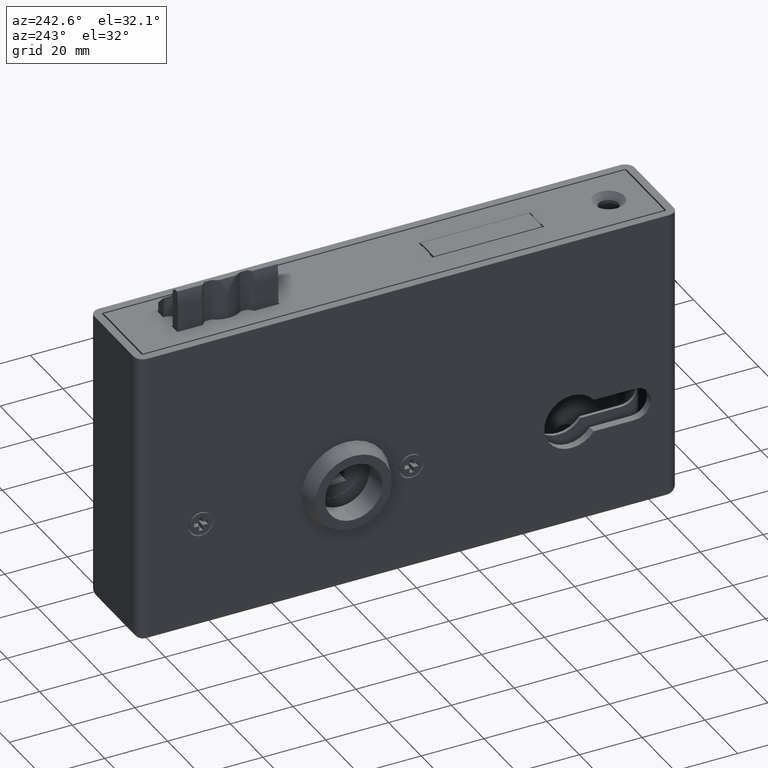
[diagram: clean part render]
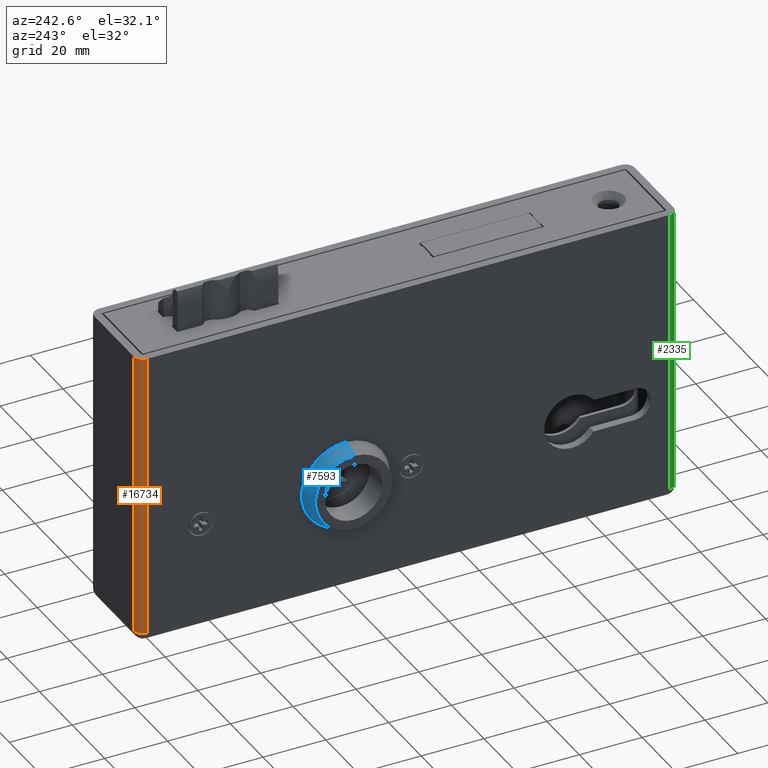
[diagram: same view with three faces highlighted in distinct colors, each labeled with its STEP entity id]
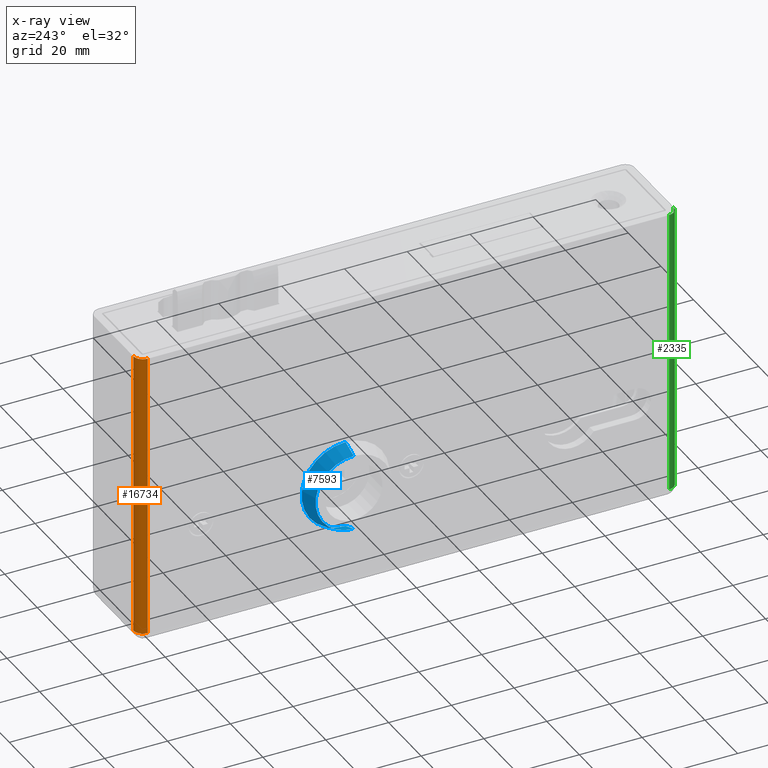
[diagram: x-ray of the same camera — body ghosted, the three highlighted faces saturated]
A machine part, auxiliary view with three faces highlighted in distinct colors.
The next image is the same camera in x-ray (body ghosted, the three faces saturated) — at least one of them is partly hidden behind the body in this view.
Their STEP definitions:

[orange] entity #16734 — the highlighted cylindrical surface (edge-blend (fillet) strip) has radius 3 mm, axis along (0, 0, 1).
#22 = LINE ( 'NONE', #6346, #17492 ) ;
#471 = DIRECTION ( 'NONE',  ( -1.000000000000000000, 0.000000000000000000, 0.000000000000000000 ) ) ;
#531 = DIRECTION ( 'NONE',  ( 0.000000000000000000, -0.000000000000000000, -1.000000000000000000 ) ) ;
#3063 = CARTESIAN_POINT ( 'NONE',  ( -12.00000000000000000, 82.99999999999997158, 47.25000000000000000 ) ) ;
#6015 = VERTEX_POINT ( 'NONE', #15608 ) ;
#6027 = VECTOR ( 'NONE', #20986, 1000.000000000000000 ) ;
#6071 = EDGE_CURVE ( 'NONE', #12103, #24096, #21462, .T. ) ;
#6282 = CARTESIAN_POINT ( 'NONE',  ( -12.00000000000000000, 82.99999999999997158, -44.25000000000000000 ) ) ;
#6346 = CARTESIAN_POINT ( 'NONE',  ( -15.00000000000000000, 82.99999999999997158, 0.000000000000000000 ) ) ;
#6524 = EDGE_CURVE ( 'NONE', #13938, #12103, #22, .T. ) ;
#7935 = CIRCLE ( 'NONE', #22305, 3.000000000000002665 ) ;
#7979 = DIRECTION ( 'NONE',  ( 0.000000000000000000, 0.000000000000000000, -1.000000000000000000 ) ) ;
#8736 = FACE_OUTER_BOUND ( 'NONE', #23734, .T. ) ;
#9268 = CARTESIAN_POINT ( 'NONE',  ( -12.00000000000000000, 85.99999999999998579, 47.25000000000000000 ) ) ;
#9674 = ORIENTED_EDGE ( 'NONE', *, *, #6071, .F. ) ;
#10037 = CARTESIAN_POINT ( 'NONE',  ( -12.00000000000000000, 85.99999999999998579, -44.25000000000000000 ) ) ;
#10355 = AXIS2_PLACEMENT_3D ( 'NONE', #6282, #7979, #471 ) ;
#11110 = DIRECTION ( 'NONE',  ( 0.000000000000000000, 1.000000000000000000, 0.000000000000000000 ) ) ;
#12103 = VERTEX_POINT ( 'NONE', #24935 ) ;
#12216 = ORIENTED_EDGE ( 'NONE', *, *, #6524, .F. ) ;
#13815 = EDGE_CURVE ( 'NONE', #6015, #13938, #7935, .T. ) ;
#13938 = VERTEX_POINT ( 'NONE', #16855 ) ;
#14994 = DIRECTION ( 'NONE',  ( -0.000000000000000000, -1.210272192541958616E-16, 1.000000000000000000 ) ) ;
#15502 = CARTESIAN_POINT ( 'NONE',  ( -12.00000000000000000, 82.99999999999997158, 47.25000000000000000 ) ) ;
#15608 = CARTESIAN_POINT ( 'NONE',  ( -12.00000000000000000, 85.99999999999998579, 47.25000000000000000 ) ) ;
#16547 = DIRECTION ( 'NONE',  ( -0.000000000000000000, 0.000000000000000000, 1.000000000000000000 ) ) ;
#16734 = ADVANCED_FACE ( 'NONE', ( #8736 ), #24786, .T. ) ;
#16855 = CARTESIAN_POINT ( 'NONE',  ( -15.00000000000000000, 82.99999999999997158, 47.25000000000000000 ) ) ;
#17492 = VECTOR ( 'NONE', #531, 1000.000000000000000 ) ;
#17722 = ORIENTED_EDGE ( 'NONE', *, *, #23023, .F. ) ;
#18918 = AXIS2_PLACEMENT_3D ( 'NONE', #3063, #16547, #22391 ) ;
#20986 = DIRECTION ( 'NONE',  ( -0.000000000000000000, 0.000000000000000000, 1.000000000000000000 ) ) ;
#21152 = ORIENTED_EDGE ( 'NONE', *, *, #13815, .F. ) ;
#21462 = CIRCLE ( 'NONE', #10355, 2.999999999999999112 ) ;
#22305 = AXIS2_PLACEMENT_3D ( 'NONE', #15502, #14994, #11110 ) ;
#22391 = DIRECTION ( 'NONE',  ( 1.000000000000000000, 0.000000000000000000, 0.000000000000000000 ) ) ;
#23023 = EDGE_CURVE ( 'NONE', #24096, #6015, #23875, .T. ) ;
#23734 = EDGE_LOOP ( 'NONE', ( #9674, #12216, #21152, #17722 ) ) ;
#23875 = LINE ( 'NONE', #9268, #6027 ) ;
#24096 = VERTEX_POINT ( 'NONE', #10037 ) ;
#24786 = CYLINDRICAL_SURFACE ( 'NONE', #18918, 2.999999999999999112 ) ;
#24935 = CARTESIAN_POINT ( 'NONE',  ( -15.00000000000000000, 82.99999999999997158, -44.25000000000000000 ) ) ;

[blue] entity #7593 — the highlighted conical surface has half-angle 20.304 deg.
#306 = DIRECTION ( 'NONE',  ( 8.881784197001252323E-15, 0.000000000000000000, -1.000000000000000000 ) ) ;
#436 = LINE ( 'NONE', #12764, #23971 ) ;
#631 = CARTESIAN_POINT ( 'NONE',  ( 1.079136779935652284E-13, 8.000000000000000000, -12.15000000000000036 ) ) ;
#774 = CARTESIAN_POINT ( 'NONE',  ( -1.226304732392112657E-13, 3.000000000000002665, 14.00000000000000000 ) ) ;
#1657 = DIRECTION ( 'NONE',  ( 0.000000000000000000, -1.000000000000000000, 0.000000000000000000 ) ) ;
#3218 = DIRECTION ( 'NONE',  ( 0.000000000000000000, -1.000000000000000000, 0.000000000000000000 ) ) ;
#3685 = VECTOR ( 'NONE', #9789, 1000.000000000000000 ) ;
#4501 = EDGE_CURVE ( 'NONE', #4995, #5199, #22118, .T. ) ;
#4705 = EDGE_CURVE ( 'NONE', #16678, #5199, #9730, .T. ) ;
#4995 = VERTEX_POINT ( 'NONE', #774 ) ;
#5199 = VERTEX_POINT ( 'NONE', #7260 ) ;
#5995 = ORIENTED_EDGE ( 'NONE', *, *, #4705, .T. ) ;
#6659 = CONICAL_SURFACE ( 'NONE', #21999, 14.00000000000000000, 0.3543799191234377477 ) ;
#7042 = CARTESIAN_POINT ( 'NONE',  ( 0.000000000000000000, 8.000000000000000000, 0.000000000000000000 ) ) ;
#7260 = CARTESIAN_POINT ( 'NONE',  ( 1.243449787580175325E-13, 3.000000000000002665, -14.00000000000000000 ) ) ;
#7593 = ADVANCED_FACE ( 'NONE', ( #21440 ), #6659, .T. ) ;
#7876 = CARTESIAN_POINT ( 'NONE',  ( 1.243449787580175325E-13, 3.000000000000002665, -14.00000000000000000 ) ) ;
#8522 = ORIENTED_EDGE ( 'NONE', *, *, #4501, .F. ) ;
#8930 = EDGE_CURVE ( 'NONE', #15783, #16678, #24731, .T. ) ;
#9471 = CARTESIAN_POINT ( 'NONE',  ( 0.000000000000000000, 3.000000000000002665, 0.000000000000000000 ) ) ;
#9730 = LINE ( 'NONE', #7876, #3685 ) ;
#9789 = DIRECTION ( 'NONE',  ( 3.082058002519743016E-15, -0.9378618426812278530, -0.3470088817920542468 ) ) ;
#11055 = EDGE_LOOP ( 'NONE', ( #22038, #15977, #5995, #8522 ) ) ;
#12309 = AXIS2_PLACEMENT_3D ( 'NONE', #9471, #1657, #13429 ) ;
#12764 = CARTESIAN_POINT ( 'NONE',  ( -1.226304732392112657E-13, 3.000000000000002665, 14.00000000000000000 ) ) ;
#13226 = EDGE_CURVE ( 'NONE', #15783, #4995, #436, .T. ) ;
#13429 = DIRECTION ( 'NONE',  ( 8.881784197001252323E-15, 0.000000000000000000, -1.000000000000000000 ) ) ;
#13933 = AXIS2_PLACEMENT_3D ( 'NONE', #7042, #3218, #20604 ) ;
#15154 = CARTESIAN_POINT ( 'NONE',  ( 0.000000000000000000, 3.000000000000002665, 0.000000000000000000 ) ) ;
#15783 = VERTEX_POINT ( 'NONE', #21066 ) ;
#15977 = ORIENTED_EDGE ( 'NONE', *, *, #8930, .T. ) ;
#16308 = DIRECTION ( 'NONE',  ( -3.039561670883508957E-15, -0.9378618426812278530, 0.3470088817920542468 ) ) ;
#16678 = VERTEX_POINT ( 'NONE', #631 ) ;
#17574 = DIRECTION ( 'NONE',  ( 0.000000000000000000, -1.000000000000000000, 0.000000000000000000 ) ) ;
#20604 = DIRECTION ( 'NONE',  ( 8.881784197001252323E-15, 0.000000000000000000, -1.000000000000000000 ) ) ;
#21066 = CARTESIAN_POINT ( 'NONE',  ( -1.145281026859062203E-13, 8.000000000000000000, 12.15000000000000036 ) ) ;
#21440 = FACE_OUTER_BOUND ( 'NONE', #11055, .T. ) ;
#21999 = AXIS2_PLACEMENT_3D ( 'NONE', #15154, #17574, #306 ) ;
#22038 = ORIENTED_EDGE ( 'NONE', *, *, #13226, .F. ) ;
#22118 = CIRCLE ( 'NONE', #12309, 14.00000000000000000 ) ;
#23971 = VECTOR ( 'NONE', #16308, 1000.000000000000000 ) ;
#24731 = CIRCLE ( 'NONE', #13933, 12.15000000000000036 ) ;

[green] entity #2335 — the highlighted cylindrical surface (edge-blend (fillet) strip) has radius 3 mm, axis along (0, 0, -1).
#245 = EDGE_CURVE ( 'NONE', #12862, #14011, #19856, .T. ) ;
#708 = DIRECTION ( 'NONE',  ( -0.000000000000000000, -0.000000000000000000, -1.000000000000000000 ) ) ;
#1284 = CARTESIAN_POINT ( 'NONE',  ( -12.00000000000000000, -83.00000000000000000, 47.24999999999997868 ) ) ;
#1466 = ORIENTED_EDGE ( 'NONE', *, *, #3642, .F. ) ;
#2335 = ADVANCED_FACE ( 'NONE', ( #6190 ), #9219, .T. ) ;
#3642 = EDGE_CURVE ( 'NONE', #16419, #12862, #10975, .T. ) ;
#3936 = AXIS2_PLACEMENT_3D ( 'NONE', #13307, #5261, #20648 ) ;
#4001 = CARTESIAN_POINT ( 'NONE',  ( -12.00000000000000000, -86.00000000000000000, 47.24999999999997868 ) ) ;
#5261 = DIRECTION ( 'NONE',  ( -0.000000000000000000, -1.210272192541958616E-16, 1.000000000000000000 ) ) ;
#5855 = CIRCLE ( 'NONE', #14607, 2.999999999999999112 ) ;
#6190 = FACE_OUTER_BOUND ( 'NONE', #11639, .T. ) ;
#6318 = CARTESIAN_POINT ( 'NONE',  ( -12.00000000000000000, -86.00000000000000000, -44.25000000000002842 ) ) ;
#7850 = CARTESIAN_POINT ( 'NONE',  ( -12.00000000000000000, -86.00000000000000000, 47.24999999999997868 ) ) ;
#8435 = CARTESIAN_POINT ( 'NONE',  ( -15.00000000000000000, -83.00000000000000000, 47.24999999999997868 ) ) ;
#8998 = DIRECTION ( 'NONE',  ( -1.000000000000000000, 0.000000000000000000, 0.000000000000000000 ) ) ;
#9206 = EDGE_CURVE ( 'NONE', #14011, #14992, #12009, .T. ) ;
#9219 = CYLINDRICAL_SURFACE ( 'NONE', #24373, 2.999999999999999112 ) ;
#9314 = ORIENTED_EDGE ( 'NONE', *, *, #245, .F. ) ;
#9483 = DIRECTION ( 'NONE',  ( -0.000000000000000000, -0.000000000000000000, 1.000000000000000000 ) ) ;
#10975 = LINE ( 'NONE', #19160, #18807 ) ;
#11639 = EDGE_LOOP ( 'NONE', ( #9314, #1466, #18547, #16579 ) ) ;
#12009 = LINE ( 'NONE', #7850, #14119 ) ;
#12862 = VERTEX_POINT ( 'NONE', #8435 ) ;
#13307 = CARTESIAN_POINT ( 'NONE',  ( -12.00000000000000000, -83.00000000000000000, 47.24999999999997868 ) ) ;
#14011 = VERTEX_POINT ( 'NONE', #4001 ) ;
#14119 = VECTOR ( 'NONE', #23295, 1000.000000000000000 ) ;
#14607 = AXIS2_PLACEMENT_3D ( 'NONE', #17882, #708, #23637 ) ;
#14992 = VERTEX_POINT ( 'NONE', #6318 ) ;
#16419 = VERTEX_POINT ( 'NONE', #21030 ) ;
#16513 = DIRECTION ( 'NONE',  ( 0.000000000000000000, 0.000000000000000000, -1.000000000000000000 ) ) ;
#16579 = ORIENTED_EDGE ( 'NONE', *, *, #9206, .F. ) ;
#17882 = CARTESIAN_POINT ( 'NONE',  ( -12.00000000000000000, -83.00000000000000000, -44.25000000000002842 ) ) ;
#18547 = ORIENTED_EDGE ( 'NONE', *, *, #19923, .F. ) ;
#18807 = VECTOR ( 'NONE', #9483, 1000.000000000000000 ) ;
#19160 = CARTESIAN_POINT ( 'NONE',  ( -15.00000000000000000, -83.00000000000000000, 0.000000000000000000 ) ) ;
#19856 = CIRCLE ( 'NONE', #3936, 3.000000000000002665 ) ;
#19923 = EDGE_CURVE ( 'NONE', #14992, #16419, #5855, .T. ) ;
#20648 = DIRECTION ( 'NONE',  ( 0.000000000000000000, 1.000000000000000000, 0.000000000000000000 ) ) ;
#21030 = CARTESIAN_POINT ( 'NONE',  ( -15.00000000000000000, -83.00000000000000000, -44.25000000000002842 ) ) ;
#23295 = DIRECTION ( 'NONE',  ( 0.000000000000000000, 0.000000000000000000, -1.000000000000000000 ) ) ;
#23637 = DIRECTION ( 'NONE',  ( -1.000000000000000000, 0.000000000000000000, 0.000000000000000000 ) ) ;
#24373 = AXIS2_PLACEMENT_3D ( 'NONE', #1284, #16513, #8998 ) ;